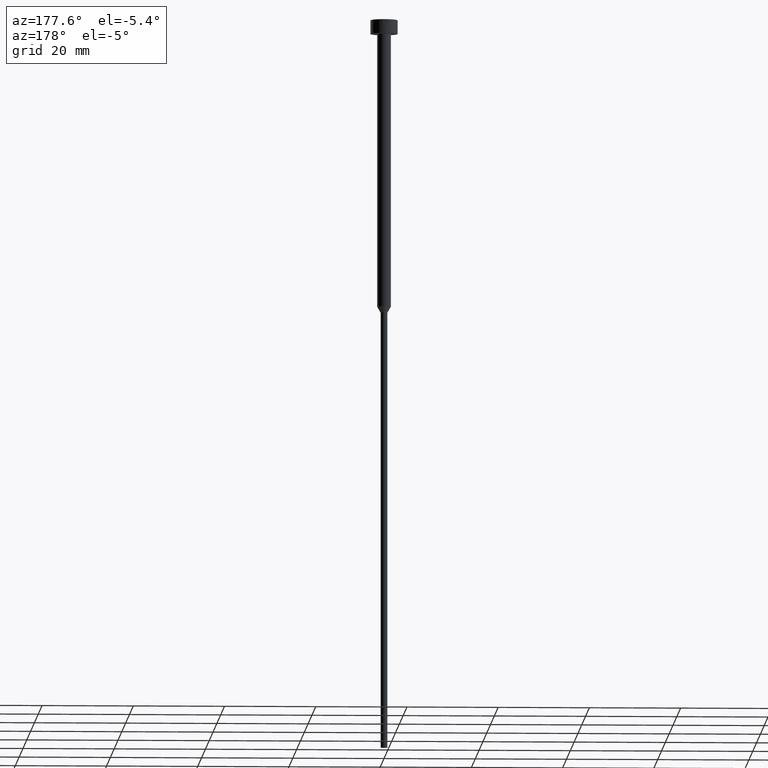
[diagram: clean part render]
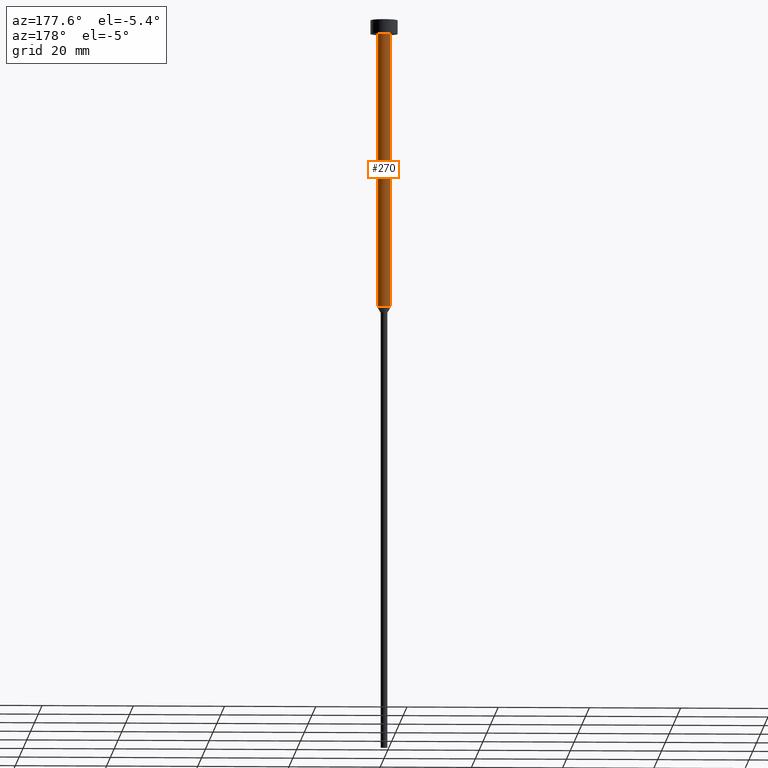
[diagram: same view with one face highlighted and labeled with its STEP entity id]
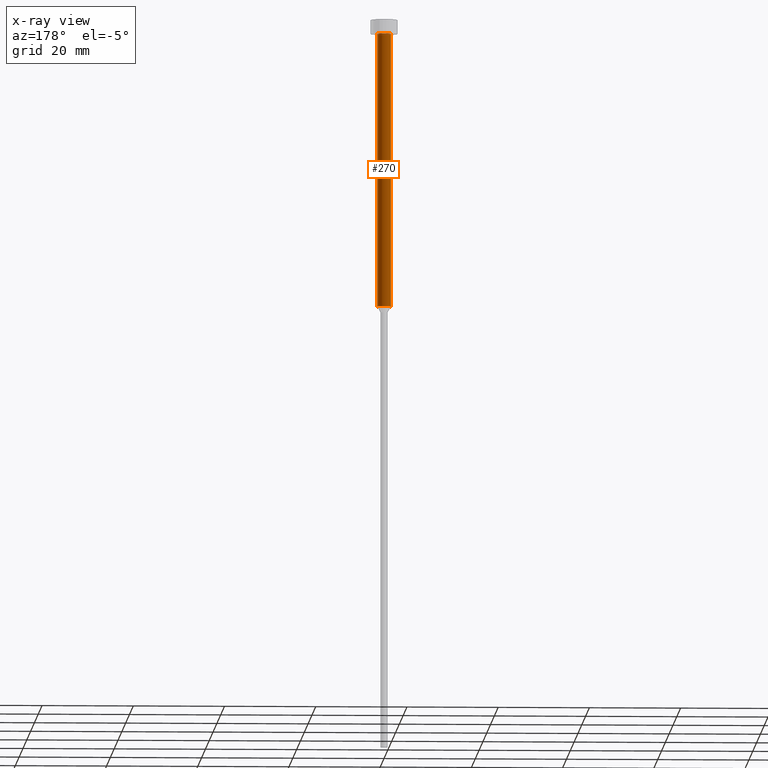
[diagram: x-ray of the same camera — body ghosted, the highlighted face saturated]
A machine part, auxiliary view. The second image highlights one B-rep face of the part: STEP entity #270.
The next image is the same camera in x-ray: the body ghosted, the highlighted face saturated — about 0% of this face is hidden behind the body in this view.
In plain terms, the highlighted cylindrical surface (edge-blend (fillet) strip) has radius 1.5 mm, axis along (-0, -0, 1).
Its self-contained STEP definition (entity closure, byte-faithful):
#18 = DIRECTION ( 'NONE',  ( 1.000000000000000000, 0.000000000000000000, 0.000000000000000000 ) ) ;
#36 = CARTESIAN_POINT ( 'NONE',  ( 1.500000000000000000, 0.000000000000000000, -3.000000000000000888 ) ) ;
#40 = ORIENTED_EDGE ( 'NONE', *, *, #220, .F. ) ;
#41 = DIRECTION ( 'NONE',  ( -0.000000000000000000, -0.000000000000000000, 1.000000000000000000 ) ) ;
#45 = EDGE_CURVE ( 'NONE', #113, #344, #320, .T. ) ;
#52 = CARTESIAN_POINT ( 'NONE',  ( -1.500000000000000000, 1.836970198721029934E-16, -3.000000000000000888 ) ) ;
#62 = DIRECTION ( 'NONE',  ( -0.000000000000000000, -0.000000000000000000, 1.000000000000000000 ) ) ;
#66 = ORIENTED_EDGE ( 'NONE', *, *, #93, .T. ) ;
#70 = FACE_OUTER_BOUND ( 'NONE', #286, .T. ) ;
#79 = AXIS2_PLACEMENT_3D ( 'NONE', #224, #274, #300 ) ;
#93 = EDGE_CURVE ( 'NONE', #334, #344, #144, .T. ) ;
#94 = VERTEX_POINT ( 'NONE', #201 ) ;
#104 = DIRECTION ( 'NONE',  ( -0.000000000000000000, -0.000000000000000000, 1.000000000000000000 ) ) ;
#105 = LINE ( 'NONE', #346, #233 ) ;
#113 = VERTEX_POINT ( 'NONE', #36 ) ;
#143 = CIRCLE ( 'NONE', #79, 1.500000000000000000 ) ;
#144 = LINE ( 'NONE', #237, #228 ) ;
#190 = CYLINDRICAL_SURFACE ( 'NONE', #254, 1.500000000000000000 ) ;
#201 = CARTESIAN_POINT ( 'NONE',  ( 1.500000000000000000, 0.000000000000000000, -63.00000000000000000 ) ) ;
#220 = EDGE_CURVE ( 'NONE', #94, #113, #105, .T. ) ;
#223 = CARTESIAN_POINT ( 'NONE',  ( -1.500000000000000000, 1.836970198721029934E-16, -63.00000000000000000 ) ) ;
#224 = CARTESIAN_POINT ( 'NONE',  ( 0.000000000000000000, 0.000000000000000000, -63.00000000000000000 ) ) ;
#228 = VECTOR ( 'NONE', #62, 1000.000000000000000 ) ;
#233 = VECTOR ( 'NONE', #104, 1000.000000000000000 ) ;
#237 = CARTESIAN_POINT ( 'NONE',  ( -1.500000000000000000, 1.836970198721029934E-16, 0.000000000000000000 ) ) ;
#254 = AXIS2_PLACEMENT_3D ( 'NONE', #292, #41, #18 ) ;
#261 = DIRECTION ( 'NONE',  ( -0.000000000000000000, -0.000000000000000000, 1.000000000000000000 ) ) ;
#264 = ORIENTED_EDGE ( 'NONE', *, *, #45, .F. ) ;
#270 = ADVANCED_FACE ( 'NONE', ( #70 ), #190, .T. ) ;
#274 = DIRECTION ( 'NONE',  ( -0.000000000000000000, -0.000000000000000000, 1.000000000000000000 ) ) ;
#286 = EDGE_LOOP ( 'NONE', ( #314, #66, #264, #40 ) ) ;
#292 = CARTESIAN_POINT ( 'NONE',  ( 0.000000000000000000, 0.000000000000000000, 0.000000000000000000 ) ) ;
#300 = DIRECTION ( 'NONE',  ( 1.000000000000000000, 0.000000000000000000, 0.000000000000000000 ) ) ;
#311 = DIRECTION ( 'NONE',  ( 1.000000000000000000, 0.000000000000000000, 0.000000000000000000 ) ) ;
#313 = EDGE_CURVE ( 'NONE', #94, #334, #143, .T. ) ;
#314 = ORIENTED_EDGE ( 'NONE', *, *, #313, .T. ) ;
#320 = CIRCLE ( 'NONE', #333, 1.500000000000000000 ) ;
#331 = CARTESIAN_POINT ( 'NONE',  ( 0.000000000000000000, 0.000000000000000000, -3.000000000000000888 ) ) ;
#333 = AXIS2_PLACEMENT_3D ( 'NONE', #331, #261, #311 ) ;
#334 = VERTEX_POINT ( 'NONE', #223 ) ;
#344 = VERTEX_POINT ( 'NONE', #52 ) ;
#346 = CARTESIAN_POINT ( 'NONE',  ( 1.500000000000000000, 0.000000000000000000, 0.000000000000000000 ) ) ;